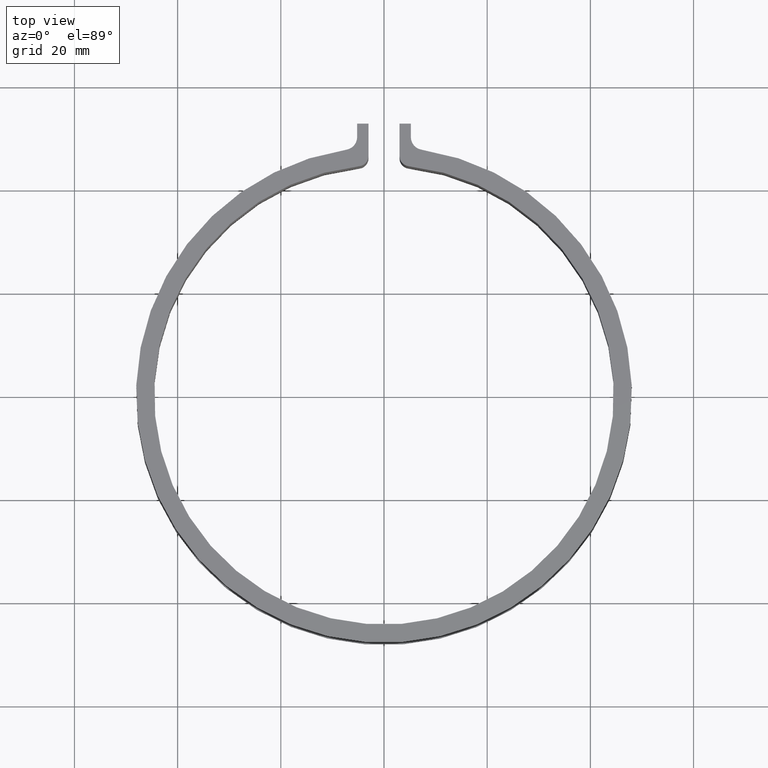
[diagram: clean part render]
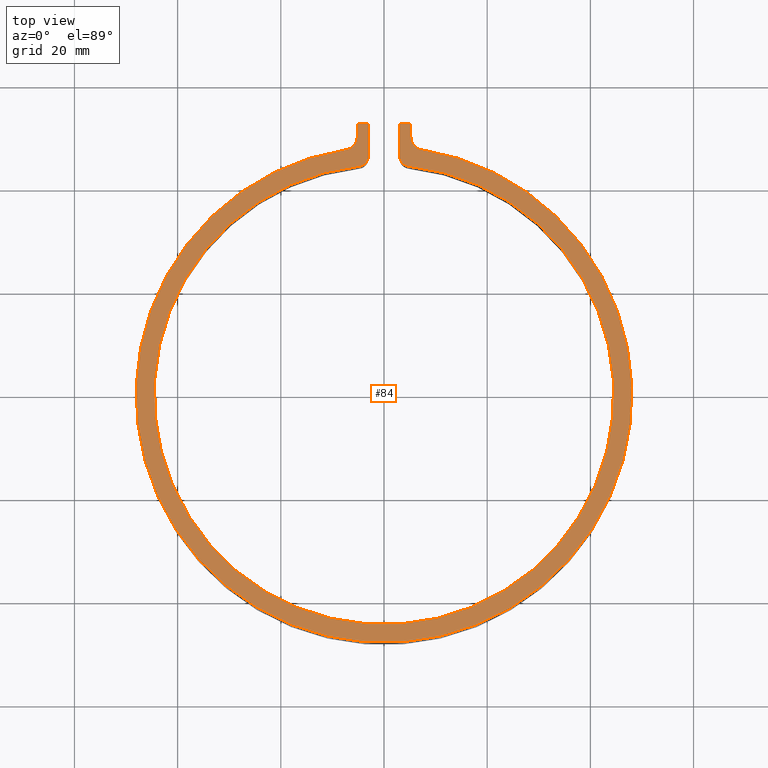
[diagram: same view with one face highlighted and labeled with its STEP entity id]
A machine part, top view. The second image highlights one B-rep face of the part: STEP entity #84.
In plain terms, the highlighted planar face has unit normal (0, 0, 1).
Its self-contained STEP definition (entity closure, byte-faithful):
#84 = ADVANCED_FACE( '', ( #120 ), #121, .T. );
#120 = FACE_OUTER_BOUND( '', #172, .T. );
#121 = PLANE( '', #173 );
#172 = EDGE_LOOP( '', ( #293, #294, #295, #296, #297, #298, #299, #300, #301, #302, #303, #304 ) );
#173 = AXIS2_PLACEMENT_3D( '', #305, #306, #307 );
#293 = ORIENTED_EDGE( '', *, *, #474, .F. );
#294 = ORIENTED_EDGE( '', *, *, #438, .T. );
#295 = ORIENTED_EDGE( '', *, *, #475, .T. );
#296 = ORIENTED_EDGE( '', *, *, #434, .T. );
#297 = ORIENTED_EDGE( '', *, *, #476, .T. );
#298 = ORIENTED_EDGE( '', *, *, #458, .T. );
#299 = ORIENTED_EDGE( '', *, *, #469, .T. );
#300 = ORIENTED_EDGE( '', *, *, #473, .T. );
#301 = ORIENTED_EDGE( '', *, *, #477, .F. );
#302 = ORIENTED_EDGE( '', *, *, #478, .F. );
#303 = ORIENTED_EDGE( '', *, *, #479, .F. );
#304 = ORIENTED_EDGE( '', *, *, #480, .F. );
#305 = CARTESIAN_POINT( '', ( 5.00000000000000, 46.2806925185871, 14.0000000000000 ) );
#306 = DIRECTION( '', ( 0.000000000000000, 0.000000000000000, 1.00000000000000 ) );
#307 = DIRECTION( '', ( -0.107411385606873, -0.994214662053428, 0.000000000000000 ) );
#434 = EDGE_CURVE( '', #513, #511, #514, .T. );
#438 = EDGE_CURVE( '', #521, #519, #522, .T. );
#458 = EDGE_CURVE( '', #558, #556, #559, .T. );
#469 = EDGE_CURVE( '', #556, #574, #576, .T. );
#473 = EDGE_CURVE( '', #574, #580, #582, .T. );
#474 = EDGE_CURVE( '', #521, #583, #584, .T. );
#475 = EDGE_CURVE( '', #519, #513, #585, .T. );
#476 = EDGE_CURVE( '', #511, #558, #586, .T. );
#477 = EDGE_CURVE( '', #587, #580, #588, .T. );
#478 = EDGE_CURVE( '', #589, #587, #590, .T. );
#479 = EDGE_CURVE( '', #591, #589, #592, .T. );
#480 = EDGE_CURVE( '', #583, #591, #593, .T. );
#511 = VERTEX_POINT( '', #635 );
#513 = VERTEX_POINT( '', #638 );
#514 = CIRCLE( '', #639, 2.00000000000000 );
#519 = VERTEX_POINT( '', #646 );
#521 = VERTEX_POINT( '', #649 );
#522 = LINE( '', #650, #651 );
#556 = VERTEX_POINT( '', #696 );
#558 = VERTEX_POINT( '', #699 );
#559 = CIRCLE( '', #700, 2.00000000000000 );
#574 = VERTEX_POINT( '', #720 );
#576 = LINE( '', #723, #724 );
#580 = VERTEX_POINT( '', #730 );
#582 = LINE( '', #733, #734 );
#583 = VERTEX_POINT( '', #735 );
#584 = LINE( '', #736, #737 );
#585 = LINE( '', #738, #739 );
#586 = CIRCLE( '', #740, 44.5500000000000 );
#587 = VERTEX_POINT( '', #741 );
#588 = LINE( '', #742, #743 );
#589 = VERTEX_POINT( '', #744 );
#590 = CIRCLE( '', #745, 2.50000000000000 );
#591 = VERTEX_POINT( '', #746 );
#592 = CIRCLE( '', #747, 48.0500000000000 );
#593 = CIRCLE( '', #748, 2.50000000000000 );
#635 = CARTESIAN_POINT( '', ( 4.78517722878625, 44.2922631944802, 14.0000000000000 ) );
#638 = CARTESIAN_POINT( '', ( 2.99999999999999, 46.2806925185870, 14.0000000000000 ) );
#639 = AXIS2_PLACEMENT_3D( '', #796, #797, #798 );
#646 = CARTESIAN_POINT( '', ( 2.99999999999999, 52.5500000000000, 14.0000000000000 ) );
#649 = CARTESIAN_POINT( '', ( 5.19999999999998, 52.5500000000000, 14.0000000000000 ) );
#650 = CARTESIAN_POINT( '', ( 4.00000000000002, 52.5500000000000, 14.0000000000000 ) );
#651 = VECTOR( '', #802, 1000.00000000000 );
#696 = CARTESIAN_POINT( '', ( -2.99999999999934, 46.2806925185871, 14.0000000000000 ) );
#699 = CARTESIAN_POINT( '', ( -4.78517722878559, 44.2922631944803, 14.0000000000000 ) );
#700 = AXIS2_PLACEMENT_3D( '', #836, #837, #838 );
#720 = CARTESIAN_POINT( '', ( -2.99999999999934, 52.5500000000000, 14.0000000000000 ) );
#723 = CARTESIAN_POINT( '', ( -2.99999999999934, 46.2806925185871, 14.0000000000000 ) );
#724 = VECTOR( '', #857, 1000.00000000000 );
#730 = CARTESIAN_POINT( '', ( -5.20000000000000, 52.5500000000000, 14.0000000000000 ) );
#733 = CARTESIAN_POINT( '', ( -2.99999999999932, 52.5500000000000, 14.0000000000000 ) );
#734 = VECTOR( '', #861, 1000.00000000000 );
#735 = CARTESIAN_POINT( '', ( 5.20000000000000, 49.9601090871507, 14.0000000000000 ) );
#736 = CARTESIAN_POINT( '', ( 5.20000000000000, 52.5500000000000, 14.0000000000000 ) );
#737 = VECTOR( '', #862, 1000.00000000000 );
#738 = CARTESIAN_POINT( '', ( 2.99999999999999, 52.5500000000000, 14.0000000000000 ) );
#739 = VECTOR( '', #863, 1000.00000000000 );
#740 = AXIS2_PLACEMENT_3D( '', #864, #865, #866 );
#741 = CARTESIAN_POINT( '', ( -5.20000000000000, 49.9601090871507, 14.0000000000000 ) );
#742 = CARTESIAN_POINT( '', ( -5.20000000000000, 49.9601090871508, 14.0000000000000 ) );
#743 = VECTOR( '', #867, 1000.00000000000 );
#744 = CARTESIAN_POINT( '', ( -7.31918892185955, 47.4892827228010, 14.0000000000000 ) );
#745 = AXIS2_PLACEMENT_3D( '', #868, #869, #870 );
#746 = CARTESIAN_POINT( '', ( 7.31918892185955, 47.4892827228010, 14.0000000000000 ) );
#747 = AXIS2_PLACEMENT_3D( '', #871, #872, #873 );
#748 = AXIS2_PLACEMENT_3D( '', #874, #875, #876 );
#796 = CARTESIAN_POINT( '', ( 5.00000000000000, 46.2806925185871, 14.0000000000000 ) );
#797 = DIRECTION( '', ( 0.000000000000000, 0.000000000000000, 1.00000000000000 ) );
#798 = DIRECTION( '', ( -1.00000000000000, -1.16573417585641E-015, 0.000000000000000 ) );
#802 = DIRECTION( '', ( -1.00000000000000, -1.38777878078145E-017, 0.000000000000000 ) );
#836 = CARTESIAN_POINT( '', ( -4.99999999999933, 46.2806925185871, 14.0000000000000 ) );
#837 = DIRECTION( '', ( 0.000000000000000, 0.000000000000000, 1.00000000000000 ) );
#838 = DIRECTION( '', ( 1.00000000000000, 1.34614541735800E-015, 0.000000000000000 ) );
#857 = DIRECTION( '', ( 4.16333634234434E-017, 1.00000000000000, 0.000000000000000 ) );
#861 = DIRECTION( '', ( -1.00000000000000, -1.38777878078145E-017, 0.000000000000000 ) );
#862 = DIRECTION( '', ( -2.77555756156289E-017, -1.00000000000000, 0.000000000000000 ) );
#863 = DIRECTION( '', ( -4.16333634234434E-017, -1.00000000000000, 0.000000000000000 ) );
#864 = CARTESIAN_POINT( '', ( 8.67361737988404E-016, 1.38777878078145E-014, 14.0000000000000 ) );
#865 = DIRECTION( '', ( 0.000000000000000, 0.000000000000000, -1.00000000000000 ) );
#866 = DIRECTION( '', ( 1.00000000000000, 1.38777878078145E-017, 0.000000000000000 ) );
#867 = DIRECTION( '', ( 2.77555756156289E-017, 1.00000000000000, 0.000000000000000 ) );
#868 = CARTESIAN_POINT( '', ( -7.70000000000000, 49.9601090871507, 14.0000000000000 ) );
#869 = DIRECTION( '', ( 0.000000000000000, 0.000000000000000, 1.00000000000000 ) );
#870 = DIRECTION( '', ( 1.00000000000000, -1.60982338570648E-015, 0.000000000000000 ) );
#871 = CARTESIAN_POINT( '', ( -8.67361737988404E-016, 6.93889390390723E-015, 14.0000000000000 ) );
#872 = DIRECTION( '', ( 0.000000000000000, 0.000000000000000, -1.00000000000000 ) );
#873 = DIRECTION( '', ( 1.00000000000000, 0.000000000000000, 0.000000000000000 ) );
#874 = CARTESIAN_POINT( '', ( 7.70000000000000, 49.9601090871507, 14.0000000000000 ) );
#875 = DIRECTION( '', ( 0.000000000000000, 0.000000000000000, 1.00000000000000 ) );
#876 = DIRECTION( '', ( -1.00000000000000, 1.74860126378462E-015, 0.000000000000000 ) );